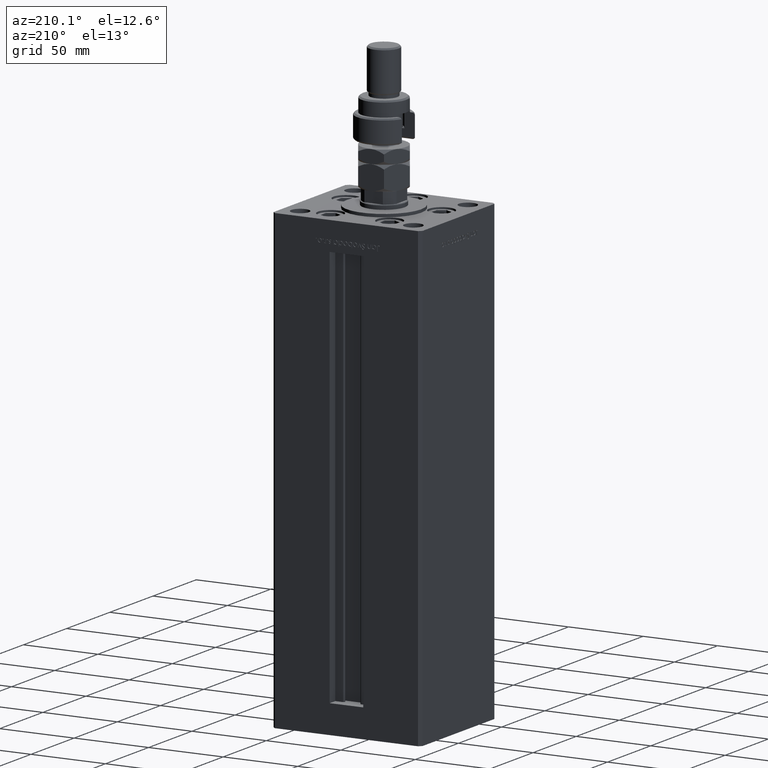
[diagram: clean part render]
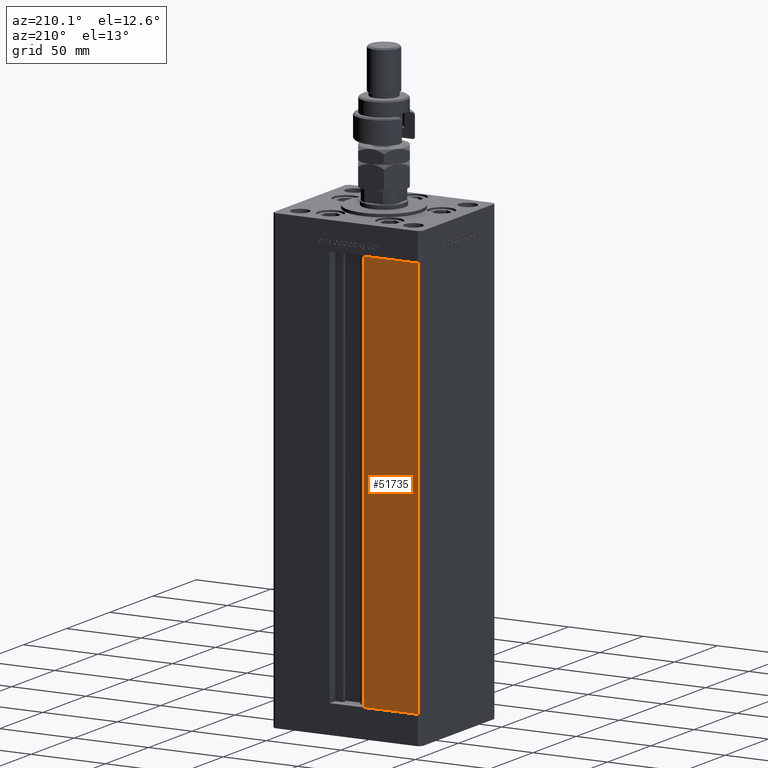
[diagram: same view with one face highlighted and labeled with its STEP entity id]
A machine part, auxiliary view. The second image highlights one B-rep face of the part: STEP entity #51735.
In plain terms, the highlighted planar face has unit normal (0, -1, 0).
Its self-contained STEP definition (entity closure, byte-faithful):
#172 = CARTESIAN_POINT ( 'NONE',  ( -11.24999999999999822, 43.50000000000000000, 0.000000000000000000 ) ) ;
#2961 = CARTESIAN_POINT ( 'NONE',  ( -48.00000000000000711, 43.50000000000000000, 268.5000000000000000 ) ) ;
#3321 = FACE_OUTER_BOUND ( 'NONE', #3840, .T. ) ;
#3840 = EDGE_LOOP ( 'NONE', ( #15786, #10489, #9117, #29381 ) ) ;
#5522 = CARTESIAN_POINT ( 'NONE',  ( -11.24999999999999822, 43.50000000000000000, 268.5000000000000000 ) ) ;
#9084 = EDGE_CURVE ( 'NONE', #38498, #46541, #38310, .T. ) ;
#9117 = ORIENTED_EDGE ( 'NONE', *, *, #37164, .T. ) ;
#9131 = LINE ( 'NONE', #51134, #29476 ) ;
#10489 = ORIENTED_EDGE ( 'NONE', *, *, #9084, .F. ) ;
#10590 = EDGE_CURVE ( 'NONE', #31581, #21163, #41348, .T. ) ;
#11532 = CARTESIAN_POINT ( 'NONE',  ( -11.24999999999999822, 43.50000000000000000, 0.000000000000000000 ) ) ;
#11968 = PLANE ( 'NONE',  #24514 ) ;
#12652 = VECTOR ( 'NONE', #34827, 1000.000000000000000 ) ;
#12989 = DIRECTION ( 'NONE',  ( -0.000000000000000000, -0.000000000000000000, 1.000000000000000000 ) ) ;
#15786 = ORIENTED_EDGE ( 'NONE', *, *, #19179, .T. ) ;
#17324 = CARTESIAN_POINT ( 'NONE',  ( -48.00000000000000711, 43.50000000000000000, 0.000000000000000000 ) ) ;
#19179 = EDGE_CURVE ( 'NONE', #31581, #46541, #47861, .T. ) ;
#20072 = CARTESIAN_POINT ( 'NONE',  ( -11.24999999999999822, 43.50000000000000000, 268.5000000000000000 ) ) ;
#21163 = VERTEX_POINT ( 'NONE', #17324 ) ;
#24070 = VECTOR ( 'NONE', #24697, 1000.000000000000000 ) ;
#24349 = CARTESIAN_POINT ( 'NONE',  ( -48.00000000000000711, 43.50000000000000000, 268.5000000000000000 ) ) ;
#24514 = AXIS2_PLACEMENT_3D ( 'NONE', #20072, #25338, #41440 ) ;
#24697 = DIRECTION ( 'NONE',  ( -0.000000000000000000, -0.000000000000000000, -1.000000000000000000 ) ) ;
#25338 = DIRECTION ( 'NONE',  ( 0.000000000000000000, -1.000000000000000000, 0.000000000000000000 ) ) ;
#25918 = CARTESIAN_POINT ( 'NONE',  ( -11.24999999999999822, 43.50000000000000000, 268.5000000000000000 ) ) ;
#29381 = ORIENTED_EDGE ( 'NONE', *, *, #10590, .F. ) ;
#29476 = VECTOR ( 'NONE', #50578, 1000.000000000000000 ) ;
#31581 = VERTEX_POINT ( 'NONE', #24349 ) ;
#34827 = DIRECTION ( 'NONE',  ( 1.000000000000000000, 0.000000000000000000, 0.000000000000000000 ) ) ;
#37164 = EDGE_CURVE ( 'NONE', #38498, #21163, #9131, .T. ) ;
#38310 = LINE ( 'NONE', #172, #41648 ) ;
#38498 = VERTEX_POINT ( 'NONE', #11532 ) ;
#41348 = LINE ( 'NONE', #2961, #24070 ) ;
#41440 = DIRECTION ( 'NONE',  ( 0.000000000000000000, -0.000000000000000000, -1.000000000000000000 ) ) ;
#41648 = VECTOR ( 'NONE', #12989, 1000.000000000000000 ) ;
#46541 = VERTEX_POINT ( 'NONE', #5522 ) ;
#47861 = LINE ( 'NONE', #25918, #12652 ) ;
#50578 = DIRECTION ( 'NONE',  ( -1.000000000000000000, 0.000000000000000000, 0.000000000000000000 ) ) ;
#51134 = CARTESIAN_POINT ( 'NONE',  ( -11.24999999999999822, 43.50000000000000000, 0.000000000000000000 ) ) ;
#51735 = ADVANCED_FACE ( 'NONE', ( #3321 ), #11968, .F. ) ;